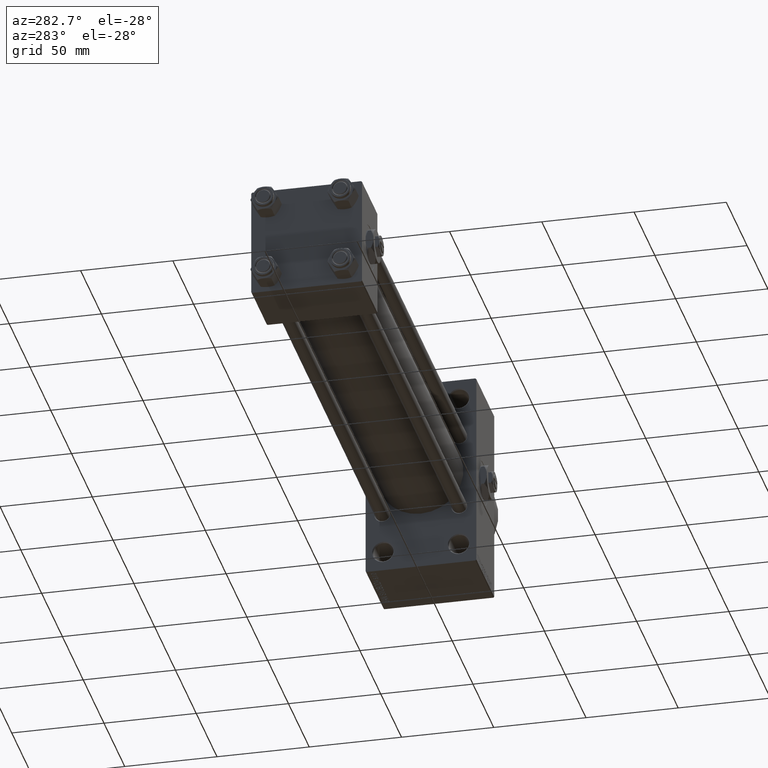
[diagram: clean part render]
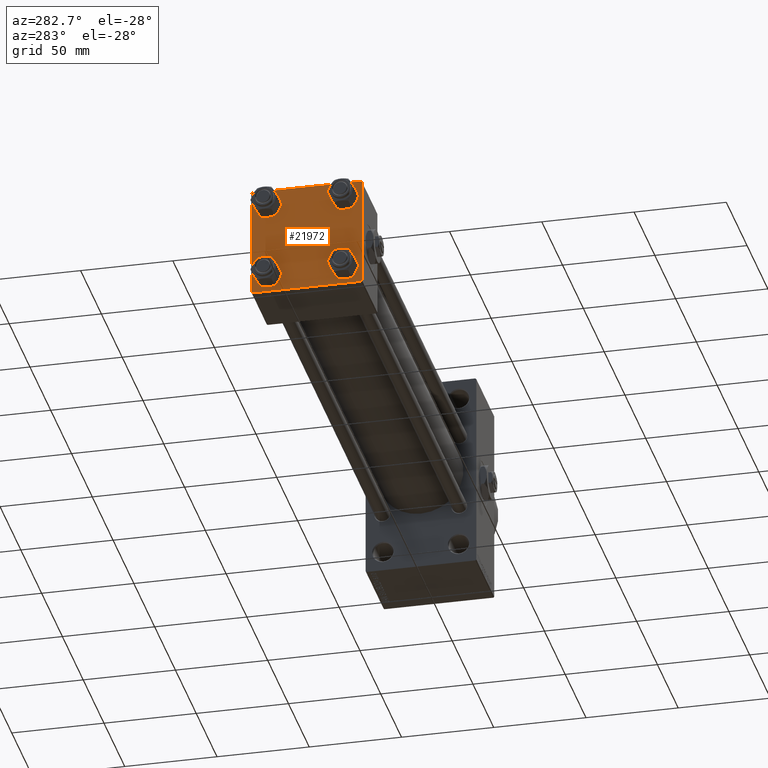
[diagram: same view with one face highlighted and labeled with its STEP entity id]
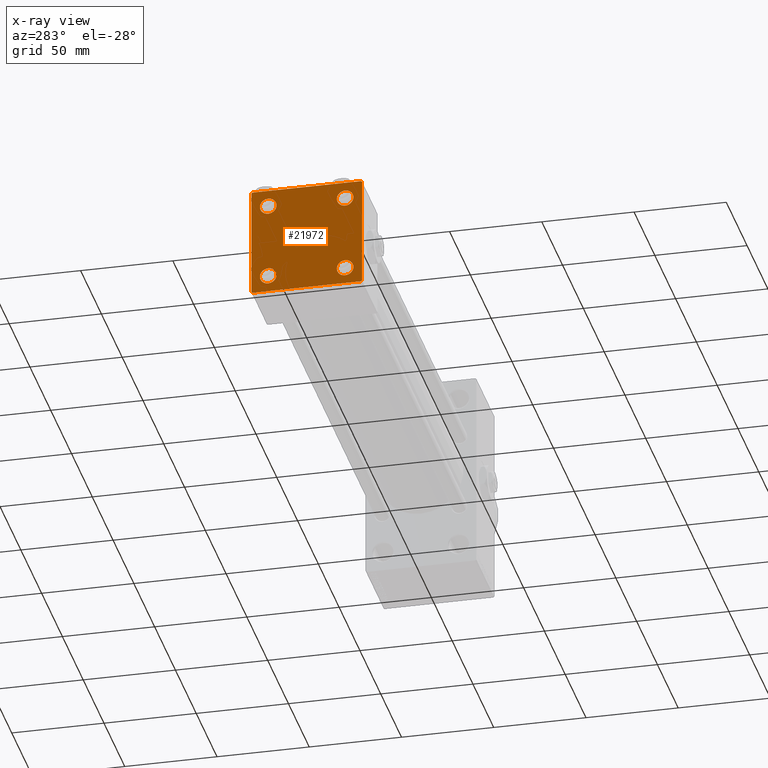
[diagram: x-ray of the same camera — body ghosted, the highlighted face saturated]
A machine part, auxiliary view. The second image highlights one B-rep face of the part: STEP entity #21972.
The next image is the same camera in x-ray: the body ghosted, the highlighted face saturated — about 0% of this face is hidden behind the body in this view.
In plain terms, the highlighted planar face has unit normal (-1, 0, 0).
Its self-contained STEP definition (entity closure, byte-faithful):
#40 = DIRECTION ( 'NONE',  ( 0.000000000000000000, -1.000000000000000000, -1.156482317317871725E-16 ) ) ;
#1182 = DIRECTION ( 'NONE',  ( 0.000000000000000000, 0.000000000000000000, 1.000000000000000000 ) ) ;
#1460 = DIRECTION ( 'NONE',  ( 1.000000000000000000, -0.000000000000000000, 0.000000000000000000 ) ) ;
#2299 = FACE_BOUND ( 'NONE', #43240, .T. ) ;
#2439 = ORIENTED_EDGE ( 'NONE', *, *, #33934, .T. ) ;
#2523 = AXIS2_PLACEMENT_3D ( 'NONE', #37952, #34198, #26704 ) ;
#2797 = PLANE ( 'NONE',  #6501 ) ;
#3350 = VECTOR ( 'NONE', #19312, 1000.000000000000000 ) ;
#3367 = CARTESIAN_POINT ( 'NONE',  ( 0.000000000000000000, 29.74999999999957723, -29.75000000000040501 ) ) ;
#3772 = LINE ( 'NONE', #34160, #37401 ) ;
#4654 = VERTEX_POINT ( 'NONE', #34699 ) ;
#5077 = ORIENTED_EDGE ( 'NONE', *, *, #34951, .T. ) ;
#5364 = LINE ( 'NONE', #32018, #28241 ) ;
#5875 = VERTEX_POINT ( 'NONE', #18460 ) ;
#6501 = AXIS2_PLACEMENT_3D ( 'NONE', #24718, #17993, #14244 ) ;
#6809 = ORIENTED_EDGE ( 'NONE', *, *, #48716, .T. ) ;
#6995 = LINE ( 'NONE', #25911, #39548 ) ;
#7159 = EDGE_CURVE ( 'NONE', #10402, #21917, #34501, .T. ) ;
#7221 = CARTESIAN_POINT ( 'NONE',  ( 0.000000000000000000, -20.84999999999999076, 25.35000000000002274 ) ) ;
#7241 = DIRECTION ( 'NONE',  ( 0.000000000000000000, -1.000000000000000000, -1.156482317317871725E-16 ) ) ;
#7852 = ORIENTED_EDGE ( 'NONE', *, *, #46048, .T. ) ;
#9185 = DIRECTION ( 'NONE',  ( 0.000000000000000000, 0.000000000000000000, 1.000000000000000000 ) ) ;
#9221 = EDGE_LOOP ( 'NONE', ( #36921, #37912 ) ) ;
#9530 = FACE_BOUND ( 'NONE', #17714, .T. ) ;
#9821 = CARTESIAN_POINT ( 'NONE',  ( 0.000000000000000000, 20.84999999999999787, 20.85000000000000142 ) ) ;
#9977 = AXIS2_PLACEMENT_3D ( 'NONE', #40984, #40248, #36499 ) ;
#10316 = AXIS2_PLACEMENT_3D ( 'NONE', #44853, #18433, #38105 ) ;
#10353 = CIRCLE ( 'NONE', #20659, 4.500000000000017764 ) ;
#10396 = CIRCLE ( 'NONE', #34266, 4.500000000000017764 ) ;
#10402 = VERTEX_POINT ( 'NONE', #39656 ) ;
#10838 = VERTEX_POINT ( 'NONE', #33830 ) ;
#10847 = VERTEX_POINT ( 'NONE', #49051 ) ;
#11042 = CARTESIAN_POINT ( 'NONE',  ( 0.000000000000000000, -29.49999999999998579, 29.99999999999999289 ) ) ;
#11368 = DIRECTION ( 'NONE',  ( 0.000000000000000000, 0.000000000000000000, 1.000000000000000000 ) ) ;
#11590 = LINE ( 'NONE', #3367, #22041 ) ;
#12559 = ORIENTED_EDGE ( 'NONE', *, *, #41946, .T. ) ;
#13186 = EDGE_CURVE ( 'NONE', #10847, #23982, #18383, .T. ) ;
#13311 = DIRECTION ( 'NONE',  ( 1.000000000000000000, -0.000000000000000000, 0.000000000000000000 ) ) ;
#13909 = CARTESIAN_POINT ( 'NONE',  ( 0.000000000000000000, 20.84999999999999787, -20.85000000000000142 ) ) ;
#14244 = DIRECTION ( 'NONE',  ( -0.000000000000000000, 0.000000000000000000, 1.000000000000000000 ) ) ;
#17297 = EDGE_CURVE ( 'NONE', #27142, #4654, #21441, .T. ) ;
#17626 = EDGE_CURVE ( 'NONE', #4654, #27142, #10353, .T. ) ;
#17714 = EDGE_LOOP ( 'NONE', ( #38188, #48452 ) ) ;
#17993 = DIRECTION ( 'NONE',  ( -1.000000000000000000, 0.000000000000000000, -0.000000000000000000 ) ) ;
#18089 = EDGE_CURVE ( 'NONE', #45525, #28313, #33382, .T. ) ;
#18383 = LINE ( 'NONE', #48802, #41661 ) ;
#18407 = DIRECTION ( 'NONE',  ( 0.000000000000000000, -0.7071067811865474617, 0.7071067811865474617 ) ) ;
#18433 = DIRECTION ( 'NONE',  ( 1.000000000000000000, -0.000000000000000000, 0.000000000000000000 ) ) ;
#18460 = CARTESIAN_POINT ( 'NONE',  ( 0.000000000000000000, 29.49999999999999289, 30.00000000000000000 ) ) ;
#18566 = DIRECTION ( 'NONE',  ( -0.000000000000000000, -0.7071067811865574537, -0.7071067811865376918 ) ) ;
#19075 = CARTESIAN_POINT ( 'NONE',  ( 0.000000000000000000, -20.84999999999999076, -20.85000000000000497 ) ) ;
#19312 = DIRECTION ( 'NONE',  ( 0.000000000000000000, 0.000000000000000000, -1.000000000000000000 ) ) ;
#19776 = CARTESIAN_POINT ( 'NONE',  ( 0.000000000000000000, 29.99999999999999289, -29.50000000000000000 ) ) ;
#20659 = AXIS2_PLACEMENT_3D ( 'NONE', #13909, #1460, #9185 ) ;
#20688 = ORIENTED_EDGE ( 'NONE', *, *, #13186, .F. ) ;
#20911 = CIRCLE ( 'NONE', #40018, 4.500000000000017764 ) ;
#21441 = CIRCLE ( 'NONE', #10316, 4.500000000000017764 ) ;
#21685 = ORIENTED_EDGE ( 'NONE', *, *, #7159, .T. ) ;
#21917 = VERTEX_POINT ( 'NONE', #19776 ) ;
#21972 = ADVANCED_FACE ( 'NONE', ( #33185, #2299, #43660, #9530, #47910 ), #2797, .T. ) ;
#22041 = VECTOR ( 'NONE', #18566, 999.9999999999998863 ) ;
#22394 = VERTEX_POINT ( 'NONE', #33854 ) ;
#22994 = ORIENTED_EDGE ( 'NONE', *, *, #38335, .T. ) ;
#23188 = EDGE_LOOP ( 'NONE', ( #21685, #22994, #7852, #12559, #20688, #2439, #28133, #33750 ) ) ;
#23982 = VERTEX_POINT ( 'NONE', #43452 ) ;
#24240 = CARTESIAN_POINT ( 'NONE',  ( 0.000000000000000000, 20.84999999999999787, 16.34999999999998366 ) ) ;
#24506 = VERTEX_POINT ( 'NONE', #7221 ) ;
#24718 = CARTESIAN_POINT ( 'NONE',  ( 0.000000000000000000, 0.000000000000000000, 0.000000000000000000 ) ) ;
#24886 = CARTESIAN_POINT ( 'NONE',  ( 0.000000000000000000, 20.84999999999999787, -25.35000000000001918 ) ) ;
#25211 = EDGE_CURVE ( 'NONE', #43083, #31246, #31136, .T. ) ;
#25858 = CARTESIAN_POINT ( 'NONE',  ( 0.000000000000000000, -29.75000000000001066, -29.75000000000001066 ) ) ;
#25911 = CARTESIAN_POINT ( 'NONE',  ( 0.000000000000000000, 29.99999999999999289, 30.00000000000000000 ) ) ;
#26074 = DIRECTION ( 'NONE',  ( 0.000000000000000000, 0.000000000000000000, -1.000000000000000000 ) ) ;
#26704 = DIRECTION ( 'NONE',  ( 0.000000000000000000, 0.000000000000000000, 1.000000000000000000 ) ) ;
#27073 = DIRECTION ( 'NONE',  ( 0.000000000000000000, 0.000000000000000000, 1.000000000000000000 ) ) ;
#27142 = VERTEX_POINT ( 'NONE', #24886 ) ;
#27738 = AXIS2_PLACEMENT_3D ( 'NONE', #19075, #42511, #11368 ) ;
#27864 = CARTESIAN_POINT ( 'NONE',  ( 0.000000000000000000, 29.74999999999999645, 29.74999999999999645 ) ) ;
#28133 = ORIENTED_EDGE ( 'NONE', *, *, #40864, .F. ) ;
#28241 = VECTOR ( 'NONE', #47478, 1000.000000000000114 ) ;
#28252 = EDGE_CURVE ( 'NONE', #28313, #45525, #20911, .T. ) ;
#28313 = VERTEX_POINT ( 'NONE', #24240 ) ;
#30327 = DIRECTION ( 'NONE',  ( 1.000000000000000000, -0.000000000000000000, 0.000000000000000000 ) ) ;
#31136 = CIRCLE ( 'NONE', #2523, 4.500000000000017764 ) ;
#31246 = VERTEX_POINT ( 'NONE', #41917 ) ;
#31552 = DIRECTION ( 'NONE',  ( 1.000000000000000000, -0.000000000000000000, 0.000000000000000000 ) ) ;
#32018 = CARTESIAN_POINT ( 'NONE',  ( -0.000000000000000000, -29.74999999999999645, 29.74999999999999645 ) ) ;
#33059 = CIRCLE ( 'NONE', #9977, 4.500000000000017764 ) ;
#33185 = FACE_BOUND ( 'NONE', #40638, .T. ) ;
#33382 = CIRCLE ( 'NONE', #35815, 4.500000000000017764 ) ;
#33503 = EDGE_CURVE ( 'NONE', #5875, #10402, #46598, .T. ) ;
#33507 = CARTESIAN_POINT ( 'NONE',  ( 0.000000000000000000, 29.99999999999999289, 30.00000000000000000 ) ) ;
#33608 = LINE ( 'NONE', #25858, #36402 ) ;
#33750 = ORIENTED_EDGE ( 'NONE', *, *, #33503, .T. ) ;
#33830 = CARTESIAN_POINT ( 'NONE',  ( 0.000000000000000000, -20.84999999999999076, 16.34999999999998721 ) ) ;
#33854 = CARTESIAN_POINT ( 'NONE',  ( 0.000000000000000000, -29.50000000000000000, -30.00000000000000711 ) ) ;
#33934 = EDGE_CURVE ( 'NONE', #10847, #43653, #5364, .T. ) ;
#34160 = CARTESIAN_POINT ( 'NONE',  ( 0.000000000000000000, 29.99999999999999289, -30.00000000000000000 ) ) ;
#34198 = DIRECTION ( 'NONE',  ( 1.000000000000000000, -0.000000000000000000, 0.000000000000000000 ) ) ;
#34266 = AXIS2_PLACEMENT_3D ( 'NONE', #42790, #31552, #1182 ) ;
#34501 = LINE ( 'NONE', #33507, #3350 ) ;
#34699 = CARTESIAN_POINT ( 'NONE',  ( 0.000000000000000000, 20.84999999999999787, -16.34999999999998366 ) ) ;
#34951 = EDGE_CURVE ( 'NONE', #10838, #24506, #33059, .T. ) ;
#35815 = AXIS2_PLACEMENT_3D ( 'NONE', #46035, #30327, #27073 ) ;
#36402 = VECTOR ( 'NONE', #18407, 1000.000000000000114 ) ;
#36499 = DIRECTION ( 'NONE',  ( 0.000000000000000000, 0.000000000000000000, 1.000000000000000000 ) ) ;
#36733 = DIRECTION ( 'NONE',  ( 0.000000000000000000, 0.000000000000000000, 1.000000000000000000 ) ) ;
#36921 = ORIENTED_EDGE ( 'NONE', *, *, #17626, .T. ) ;
#37401 = VECTOR ( 'NONE', #40, 1000.000000000000000 ) ;
#37803 = VECTOR ( 'NONE', #38379, 1000.000000000000114 ) ;
#37912 = ORIENTED_EDGE ( 'NONE', *, *, #17297, .T. ) ;
#37952 = CARTESIAN_POINT ( 'NONE',  ( 0.000000000000000000, -20.84999999999999076, -20.85000000000000497 ) ) ;
#38105 = DIRECTION ( 'NONE',  ( 0.000000000000000000, 0.000000000000000000, 1.000000000000000000 ) ) ;
#38188 = ORIENTED_EDGE ( 'NONE', *, *, #18089, .T. ) ;
#38335 = EDGE_CURVE ( 'NONE', #21917, #46396, #11590, .T. ) ;
#38379 = DIRECTION ( 'NONE',  ( 0.000000000000000000, 0.7071067811865474617, -0.7071067811865474617 ) ) ;
#39182 = ORIENTED_EDGE ( 'NONE', *, *, #25211, .T. ) ;
#39548 = VECTOR ( 'NONE', #7241, 1000.000000000000000 ) ;
#39656 = CARTESIAN_POINT ( 'NONE',  ( 0.000000000000000000, 29.99999999999999289, 29.50000000000000000 ) ) ;
#40018 = AXIS2_PLACEMENT_3D ( 'NONE', #9821, #13311, #36733 ) ;
#40248 = DIRECTION ( 'NONE',  ( 1.000000000000000000, -0.000000000000000000, 0.000000000000000000 ) ) ;
#40638 = EDGE_LOOP ( 'NONE', ( #6809, #5077 ) ) ;
#40864 = EDGE_CURVE ( 'NONE', #5875, #43653, #6995, .T. ) ;
#40984 = CARTESIAN_POINT ( 'NONE',  ( 0.000000000000000000, -20.84999999999999076, 20.85000000000000497 ) ) ;
#41661 = VECTOR ( 'NONE', #26074, 1000.000000000000000 ) ;
#41917 = CARTESIAN_POINT ( 'NONE',  ( 0.000000000000000000, -20.84999999999999076, -25.35000000000002274 ) ) ;
#41946 = EDGE_CURVE ( 'NONE', #22394, #23982, #33608, .T. ) ;
#42028 = ORIENTED_EDGE ( 'NONE', *, *, #44199, .T. ) ;
#42055 = CARTESIAN_POINT ( 'NONE',  ( 0.000000000000000000, -20.84999999999999076, -16.34999999999998721 ) ) ;
#42511 = DIRECTION ( 'NONE',  ( 1.000000000000000000, -0.000000000000000000, 0.000000000000000000 ) ) ;
#42790 = CARTESIAN_POINT ( 'NONE',  ( 0.000000000000000000, -20.84999999999999076, 20.85000000000000497 ) ) ;
#43083 = VERTEX_POINT ( 'NONE', #42055 ) ;
#43240 = EDGE_LOOP ( 'NONE', ( #39182, #42028 ) ) ;
#43452 = CARTESIAN_POINT ( 'NONE',  ( 0.000000000000000000, -30.00000000000000000, -29.50000000000001776 ) ) ;
#43653 = VERTEX_POINT ( 'NONE', #11042 ) ;
#43660 = FACE_BOUND ( 'NONE', #9221, .T. ) ;
#43981 = CARTESIAN_POINT ( 'NONE',  ( 0.000000000000000000, 20.84999999999999787, 25.35000000000001918 ) ) ;
#44045 = CARTESIAN_POINT ( 'NONE',  ( 0.000000000000000000, 29.49999999999997868, -30.00000000000000000 ) ) ;
#44199 = EDGE_CURVE ( 'NONE', #31246, #43083, #45258, .T. ) ;
#44853 = CARTESIAN_POINT ( 'NONE',  ( 0.000000000000000000, 20.84999999999999787, -20.85000000000000142 ) ) ;
#45258 = CIRCLE ( 'NONE', #27738, 4.500000000000017764 ) ;
#45525 = VERTEX_POINT ( 'NONE', #43981 ) ;
#46035 = CARTESIAN_POINT ( 'NONE',  ( 0.000000000000000000, 20.84999999999999787, 20.85000000000000142 ) ) ;
#46048 = EDGE_CURVE ( 'NONE', #46396, #22394, #3772, .T. ) ;
#46396 = VERTEX_POINT ( 'NONE', #44045 ) ;
#46598 = LINE ( 'NONE', #27864, #37803 ) ;
#47478 = DIRECTION ( 'NONE',  ( -0.000000000000000000, 0.7071067811865474617, 0.7071067811865474617 ) ) ;
#47910 = FACE_OUTER_BOUND ( 'NONE', #23188, .T. ) ;
#48452 = ORIENTED_EDGE ( 'NONE', *, *, #28252, .T. ) ;
#48716 = EDGE_CURVE ( 'NONE', #24506, #10838, #10396, .T. ) ;
#48802 = CARTESIAN_POINT ( 'NONE',  ( 0.000000000000000000, -30.00000000000000000, 29.99999999999999289 ) ) ;
#49051 = CARTESIAN_POINT ( 'NONE',  ( 0.000000000000000000, -30.00000000000000000, 29.49999999999999289 ) ) ;